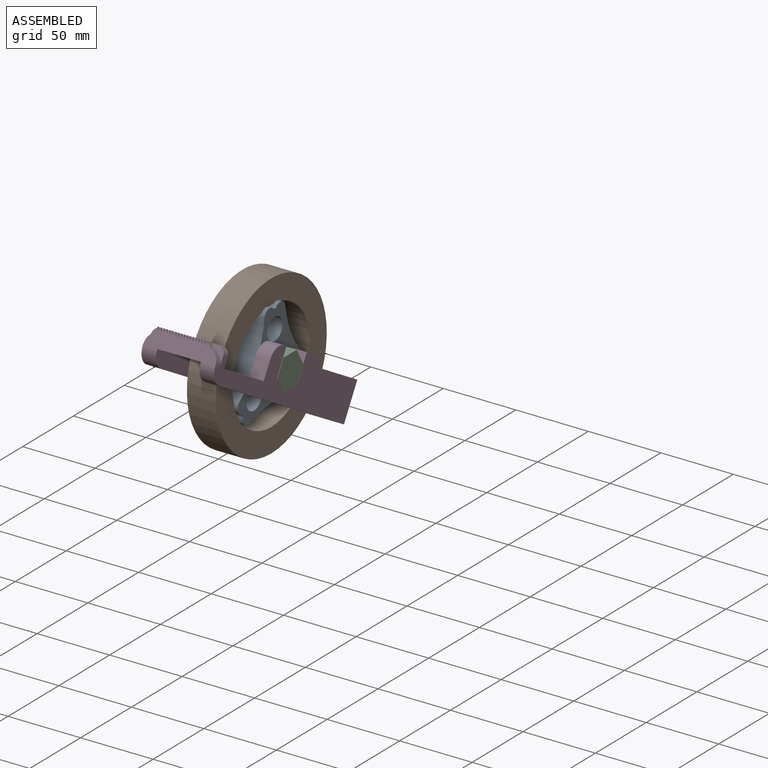
[diagram: assembled view]
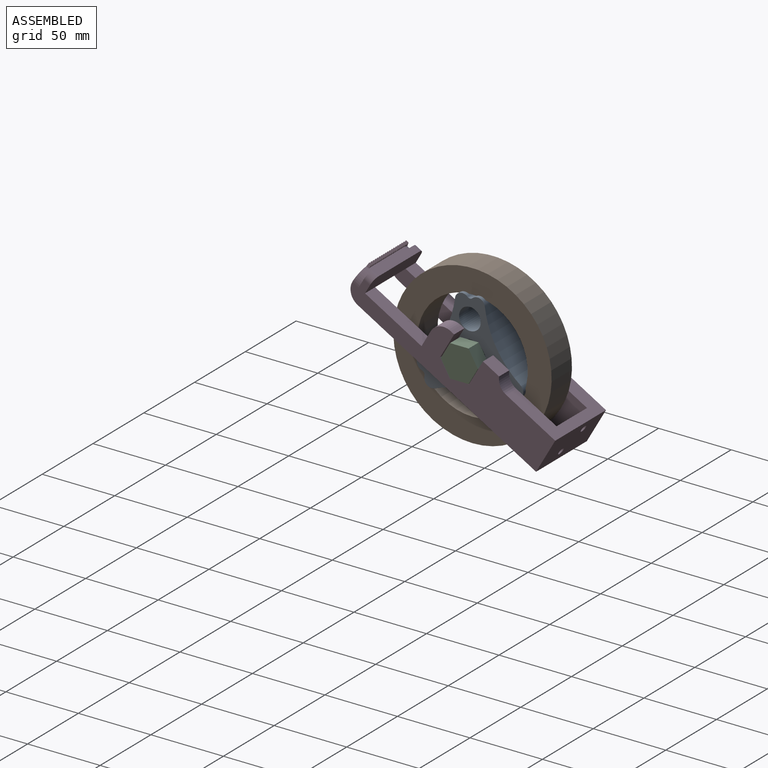
[diagram: assembled view, second angle]
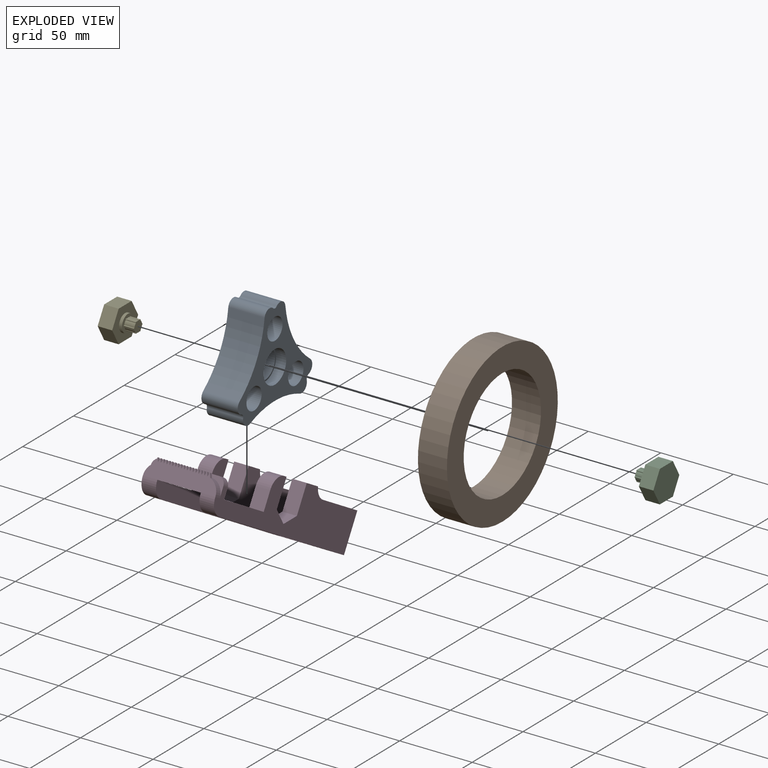
[diagram: exploded view]
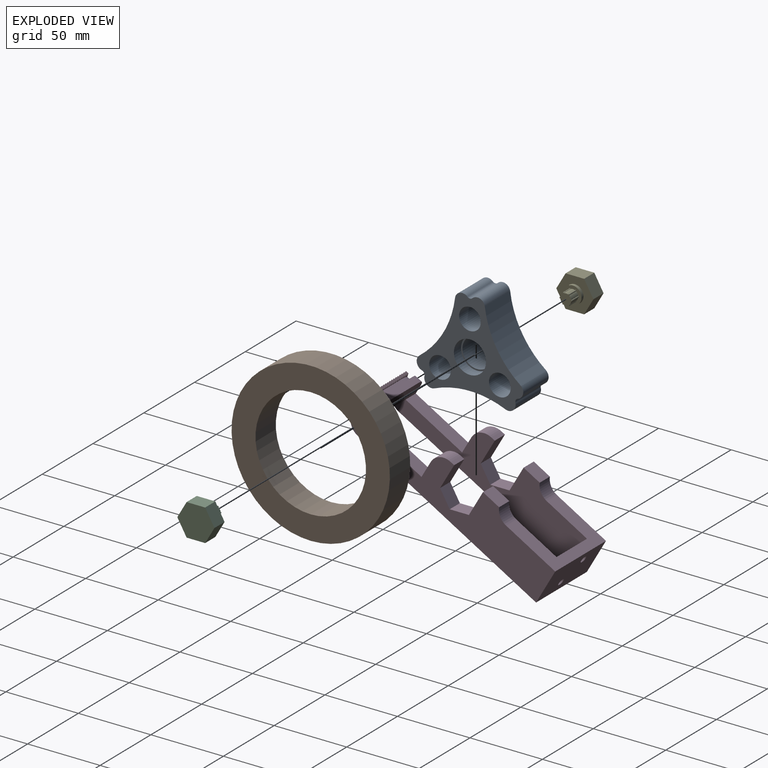
[diagram: exploded view, second angle]
ASSEMBLY  parts=5 mates=4
PART A: 34 faces, bbox 25x73.5x65 mm
  f0: cylinder r=10.08mm len=20.15mm, axis (-1,0,0), area 696.3mm2, adj f31,f33
  f1: cylinder r=2.5mm len=25mm, axis (-1,0,0), area 95.9mm2, adj f16,f17,f18,f29
  f2: cylinder r=39mm len=25mm, axis (-1,0,0), area 3mm2, adj f16,f17,f18,f19
  f3: cylinder r=63.41mm len=42.43mm, axis (-1,0,0), area 1257.7mm2, adj f16,f17,f19,f20
  f4: cylinder r=39mm len=25mm, axis (-1,0,0), area 3mm2, adj f16,f17,f20,f21
  f5: cylinder r=2.5mm len=25mm, axis (-1,0,0), area 95.9mm2, adj f16,f17,f21,f22
  f6: cylinder r=39mm len=25mm, axis (-1,0,0), area 3mm2, adj f16,f17,f22,f23
  f7: cylinder r=63.41mm len=49mm, axis (-1,0,0), area 1257.7mm2, adj f16,f17,f23,f24
  f8: cylinder r=39mm len=25mm, axis (-1,0,0), area 3mm2, adj f16,f17,f24,f25
  f9: cylinder r=2.5mm len=25mm, axis (-1,0,0), area 95.9mm2, adj f16,f17,f25,f26
  f10: cylinder r=39mm len=25mm, axis (-1,0,0), area 3mm2, adj f16,f17,f26,f27
  f11: cylinder r=63.41mm len=42.43mm, axis (-1,0,0), area 1257.7mm2, adj f16,f17,f27,f28
  f12: cylinder r=39mm len=25mm, axis (-1,0,0), area 3mm2, adj f16,f17,f28,f29
  f13: cylinder r=7.5mm len=25mm, axis (-1,0,0), area 1178.1mm2, adj f16,f17
  f14: cylinder r=7.5mm len=25mm, axis (-1,0,0), area 1178.1mm2, adj f16,f17
  f15: cylinder r=7.5mm len=25mm, axis (-1,0,0), area 1178.1mm2, adj f16,f17
  f16: plane 73.47x64.99mm, normal (1,0,0), area 1772.5mm2, adj f1,f2,f3,f4,f5,f6,f7,f8
  f17: plane 73.47x64.99mm, normal (-1,0,0), area 1772.5mm2, adj f1,f2,f3,f4,f5,f6,f7,f8
  f18: cylinder r=5mm len=25mm, axis (1,0,0), area 115.1mm2, adj f1,f2,f16,f17
  f19: cylinder r=5mm len=25mm, axis (1,0,0), area 160.9mm2, adj f2,f3,f16,f17
  f20: cylinder r=5mm len=25mm, axis (1,0,0), area 160.9mm2, adj f3,f4,f16,f17
  f21: cylinder r=5mm len=25mm, axis (1,0,0), area 115.1mm2, adj f4,f5,f16,f17
  f22: cylinder r=5mm len=25mm, axis (1,0,0), area 115.1mm2, adj f5,f6,f16,f17
  f23: cylinder r=5mm len=25mm, axis (1,0,0), area 160.9mm2, adj f6,f7,f16,f17
  f24: cylinder r=5mm len=25mm, axis (1,0,0), area 160.9mm2, adj f7,f8,f16,f17
  f25: cylinder r=5mm len=25mm, axis (1,0,0), area 115.1mm2, adj f8,f9,f16,f17
  f26: cylinder r=5mm len=25mm, axis (1,0,0), area 115.1mm2, adj f9,f10,f16,f17
  f27: cylinder r=5mm len=25mm, axis (1,0,0), area 160.9mm2, adj f10,f11,f16,f17
  f28: cylinder r=5mm len=25mm, axis (1,0,0), area 160.9mm2, adj f11,f12,f16,f17
  f29: cylinder r=5mm len=25mm, axis (1,0,0), area 115.1mm2, adj f1,f12,f16,f17
  f30: cylinder r=11.07mm len=22.15mm, axis (-1,0,0), area 487.1mm2, adj f17,f31
  f31: plane 22.15x22.15mm, normal (-1,0,0), area 66.4mm2, adj f0,f30
  f32: cylinder r=11.07mm len=22.15mm, axis (1,0,0), area 487.1mm2, adj f16,f33
  f33: plane 22.15x22.15mm, normal (1,0,0), area 66.4mm2, adj f0,f32
PART B: 4 faces, bbox 20x109.2x109.2 mm
  f0: cylinder r=38.1mm len=76.2mm, axis (-1,0,0), area 4787.8mm2, adj f2,f3
  f1: cylinder r=54.59mm len=109.17mm, axis (-1,0,0), area 6859.6mm2, adj f2,f3
  f2: plane 109.17x109.17mm, normal (1,0,0), area 4800.7mm2, adj f0,f1
  f3: plane 109.17x109.17mm, normal (-1,0,0), area 4800.7mm2, adj f0,f1
PART C: 23 faces, bbox 19x22.2x25.6 mm
  f0: plane 11.08x10mm, normal (0,0.5,-0.87), area 127.9mm2, adj f1,f5,f6,f7
  f1: plane 12.79x10mm, normal (0,1,0), area 127.9mm2, adj f0,f2,f6,f7
  f2: plane 11.08x10mm, normal (0,0.5,0.87), area 127.9mm2, adj f1,f3,f6,f7
  f3: plane 11.08x10mm, normal (0,-0.5,0.87), area 127.9mm2, adj f2,f4,f6,f7
  f4: plane 12.79x10mm, normal (0,-1,0), area 127.9mm2, adj f3,f5,f6,f7
  f5: plane 11.08x10mm, normal (0,-0.5,-0.87), area 127.9mm2, adj f0,f4,f6,f7
  f6: plane 25.58x22.15mm, normal (1,0,0), area 424.9mm2, adj f0,f1,f2,f3,f4,f5
  f7: plane 25.58x22.15mm, normal (-1,0,0), area 311.8mm2, adj f0,f1,f2,f3,f4,f5,f8
  f8: cylinder r=6mm len=12mm, axis (1,0,0), area 75.4mm2, adj f7,f9
  f9: plane 12x12mm, normal (-1,0,0), area 66.5mm2, adj f8,f11,f12,f13,f14,f15,f16,f17
  f10: plane 8.5x7.5mm, normal (-1,0,0), area 46.6mm2, adj f11,f12,f13,f14,f15,f16,f17,f18
  f11: cylinder r=0.5mm len=7mm, axis (1,0,0), area 11.5mm2, adj f9,f10,f12,f22
  f12: cylinder r=3.75mm len=7mm, axis (1,0,0), area 20.5mm2, adj f9,f10,f11,f13
  f13: cylinder r=0.5mm len=7mm, axis (1,0,0), area 11.5mm2, adj f9,f10,f12,f14
  f14: cylinder r=3.75mm len=7mm, axis (1,0,0), area 20.5mm2, adj f9,f10,f13,f15
  f15: cylinder r=0.5mm len=7mm, axis (1,0,0), area 11.5mm2, adj f9,f10,f14,f16
  f16: cylinder r=3.75mm len=7mm, axis (1,0,0), area 20.5mm2, adj f9,f10,f15,f17
  f17: cylinder r=0.5mm len=7mm, axis (1,0,0), area 11.5mm2, adj f9,f10,f16,f18
  f18: cylinder r=3.75mm len=7mm, axis (1,0,0), area 20.5mm2, adj f9,f10,f17,f19
  f19: cylinder r=0.5mm len=7mm, axis (1,0,0), area 11.5mm2, adj f9,f10,f18,f20
  f20: cylinder r=3.75mm len=7mm, axis (1,0,0), area 20.5mm2, adj f9,f10,f19,f21
  f21: cylinder r=0.5mm len=7mm, axis (1,0,0), area 11.5mm2, adj f9,f10,f20,f22
  f22: cylinder r=3.75mm len=7mm, axis (1,0,0), area 20.5mm2, adj f9,f10,f11,f21
PART D: 100 faces, bbox 50x152x32.8 mm
  f0: plane 144.96x32.79mm, normal (1,0,0), area 2687.1mm2, adj f2,f4,f5,f6,f7,f8,f9,f10
  f1: plane 50x12.27mm, normal (0,-1,0), area 499.2mm2, adj f14,f16,f28,f29,f30,f31,f33,f34
  f2: plane 142x50mm, normal (0,0,-1), area 3051.3mm2, adj f0,f3,f15,f17,f18,f27,f89,f92
  f3: plane 50x26.39mm, normal (0,1,0), area 1286.9mm2, adj f2,f4,f15,f27,f96,f98
  f4: plane 50x39.04mm, normal (0,0,1), area 992.1mm2, adj f0,f3,f15,f17,f18,f27,f86,f90
  f5: plane 12.84x10mm, normal (0,0,1), area 128.4mm2, adj f0,f6,f15,f90
  f6: plane 19.41x10mm, normal (0,-1,0), area 194.1mm2, adj f0,f5,f7,f15
  f7: plane 11.48x10mm, normal (0,-0.5,0.87), area 132.5mm2, adj f0,f6,f8,f15
  f8: plane 11.48x10mm, normal (0,0.5,0.87), area 132.5mm2, adj f0,f7,f9,f15
  f9: plane 19.41x10mm, normal (0,1,0), area 194.1mm2, adj f0,f8,f10,f15
  f10: plane 10x2.84mm, normal (0,0,1), area 28.4mm2, adj f0,f9,f15,f91
  f11: plane 12.79x10mm, normal (0,-1,0), area 127.9mm2, adj f0,f12,f15,f91
  f12: plane 45x10mm, normal (0,0,1), area 450mm2, adj f0,f11,f13,f15
  f13: plane 50x12mm, normal (0,1,0), area 589.3mm2, adj f12,f15,f16,f26,f27,f85,f94,f95
  f14: plane 30x5mm, normal (0,0,1), area 95.5mm2, adj f1,f30,f32,f33,f34,f35,f36,f37
  f15: plane 152x32.79mm, normal (-1,0,0), area 2908.1mm2, adj f2,f3,f4,f5,f6,f7,f8,f9
  f16: plane 30x10mm, normal (0,0,-1), area 300mm2, adj f0,f1,f13,f18
  f17: plane 30x26.39mm, normal (0,-1,0), area 661.2mm2, adj f0,f2,f4,f18,f97,f99
  f18: plane 144.96x32.79mm, normal (-1,0,0), area 2687.1mm2, adj f2,f4,f16,f17,f19,f20,f21,f22
  f19: plane 12.84x10mm, normal (0,0,1), area 128.4mm2, adj f18,f20,f27,f86
  f20: plane 19.41x10mm, normal (0,-1,0), area 194.1mm2, adj f18,f19,f21,f27
  f21: plane 11.48x10mm, normal (0,-0.5,0.87), area 132.5mm2, adj f18,f20,f22,f27
  f22: plane 11.48x10mm, normal (0,0.5,0.87), area 132.5mm2, adj f18,f21,f23,f27
  f23: plane 19.41x10mm, normal (0,1,0), area 194.1mm2, adj f18,f22,f24,f27
  f24: plane 10x2.84mm, normal (0,0,1), area 28.4mm2, adj f18,f23,f27,f87
  f25: plane 12.79x10mm, normal (0,-1,0), area 127.9mm2, adj f18,f26,f27,f87
  f26: plane 45x10mm, normal (0,0,1), area 450mm2, adj f13,f18,f25,f27
  f27: plane 152x32.79mm, normal (1,0,0), area 2908.1mm2, adj f2,f3,f4,f13,f19,f20,f21,f22
  f28: plane 2.46x2mm, normal (0.93,0,0.37), area 5.3mm2, adj f1,f29,f58,f59
  f29: plane 3.98x2mm, normal (-0.93,0,0.37), area 8.6mm2, adj f1,f28,f59,f93
  f30: plane 2.27x2mm, normal (0.93,0,0.37), area 4.9mm2, adj f1,f14,f31,f32
  f31: plane 2.31x2mm, normal (-0.93,0,0.37), area 5mm2, adj f1,f30,f32,f93
  f32: plane 2.31x1.83mm, normal (0,1,0), area 2.1mm2, adj f14,f30,f31,f93
  f33: plane 2.27x2mm, normal (0.93,0,0.37), area 4.9mm2, adj f1,f14,f34,f35
  f34: plane 2.27x2mm, normal (-0.93,0,0.37), area 4.9mm2, adj f1,f14,f33,f35
  f35: plane 2.27x1.82mm, normal (0,1,0), area 2.1mm2, adj f14,f33,f34
  f36: plane 2.27x2mm, normal (0.93,0,0.37), area 4.9mm2, adj f1,f14,f37,f38
  f37: plane 2.27x2mm, normal (-0.93,0,0.37), area 4.9mm2, adj f1,f14,f36,f38
  f38: plane 2.27x1.82mm, normal (0,1,0), area 2.1mm2, adj f14,f36,f37
  f39: plane 2.27x2mm, normal (0.93,0,0.37), area 4.9mm2, adj f1,f14,f40,f41
  f40: plane 2.27x2mm, normal (-0.93,0,0.37), area 4.9mm2, adj f1,f14,f39,f41
  f41: plane 2.27x1.82mm, normal (0,1,0), area 2.1mm2, adj f14,f39,f40
  f42: plane 2.27x2mm, normal (0.93,0,0.37), area 4.9mm2, adj f1,f14,f43,f44
  f43: plane 2.27x2mm, normal (-0.93,0,0.37), area 4.9mm2, adj f1,f14,f42,f44
  f44: plane 2.27x1.82mm, normal (0,1,0), area 2.1mm2, adj f14,f42,f43
  f45: plane 2.27x2mm, normal (0.93,0,0.37), area 4.9mm2, adj f1,f14,f46,f47
  f46: plane 2.27x2mm, normal (-0.93,0,0.37), area 4.9mm2, adj f1,f14,f45,f47
  f47: plane 2.27x1.82mm, normal (0,1,0), area 2.1mm2, adj f14,f45,f46
  f48: plane 2.27x2mm, normal (0.93,0,0.37), area 4.9mm2, adj f1,f14,f49,f50
  f49: plane 2.27x2mm, normal (-0.93,0,0.37), area 4.9mm2, adj f1,f14,f48,f50
  f50: plane 2.27x1.82mm, normal (0,1,0), area 2.1mm2, adj f14,f48,f49
  f51: plane 2.27x2mm, normal (0.93,0,0.37), area 4.9mm2, adj f1,f14,f52,f53
  f52: plane 2.27x2mm, normal (-0.93,0,0.37), area 4.9mm2, adj f1,f14,f51,f53
  f53: plane 2.27x1.82mm, normal (0,1,0), area 2.1mm2, adj f14,f51,f52
  f54: plane 2.77x2mm, normal (0.93,0,0.37), area 6mm2, adj f1,f55,f56,f88
  f55: plane 2.33x2mm, normal (-0.93,0,0.37), area 5mm2, adj f1,f54,f56,f88
  f56: plane 2.77x2.04mm, normal (0,1,0), area 2.5mm2, adj f54,f55,f88
  f57: plane 2.33x2mm, normal (0.93,0,0.38), area 5mm2, adj f1,f58,f59,f93
  f58: plane 2.46x2mm, normal (-0.93,0,0.37), area 5.3mm2, adj f1,f28,f57,f59
  f59: plane 4.51x3.98mm, normal (0,1,0), area 6.6mm2, adj f28,f29,f57,f58,f93
  f60: plane 2.27x2mm, normal (0.92,0,0.39), area 4.9mm2, adj f1,f14,f61,f62
  f61: plane 2.27x2mm, normal (-0.94,0,0.35), area 4.8mm2, adj f1,f14,f60,f62
  f62: plane 2.27x1.81mm, normal (0,1,0), area 2.1mm2, adj f14,f60,f61
  f63: plane 2.27x2mm, normal (0.92,0,0.39), area 4.9mm2, adj f1,f14,f64,f65
  f64: plane 2.27x2mm, normal (-0.94,0,0.34), area 4.8mm2, adj f1,f14,f63,f65
  f65: plane 2.27x1.79mm, normal (0,1,0), area 2mm2, adj f14,f63,f64
  f66: plane 2.27x2mm, normal (0.93,0,0.37), area 4.9mm2, adj f1,f14,f67,f68
  f67: plane 2.27x2mm, normal (-0.93,0,0.37), area 4.9mm2, adj f1,f14,f66,f68
  f68: plane 2.27x1.83mm, normal (0,1,0), area 2.1mm2, adj f14,f66,f67
  f69: plane 2.27x2mm, normal (0.93,0,0.37), area 4.9mm2, adj f1,f14,f70,f71
  f70: plane 2.27x2mm, normal (-0.93,0,0.37), area 4.9mm2, adj f1,f14,f69,f71
  f71: plane 2.27x1.83mm, normal (0,1,0), area 2.1mm2, adj f14,f69,f70
  f72: plane 2.27x2mm, normal (0.93,0,0.37), area 4.9mm2, adj f1,f14,f73,f74
  f73: plane 2.27x2mm, normal (-0.93,0,0.37), area 4.9mm2, adj f1,f14,f72,f74
  f74: plane 2.27x1.83mm, normal (0,1,0), area 2.1mm2, adj f14,f72,f73
  f75: plane 2.27x2mm, normal (0.93,0,0.37), area 4.9mm2, adj f1,f14,f76,f77
  f76: plane 2.27x2mm, normal (-0.93,0,0.37), area 4.9mm2, adj f1,f14,f75,f77
  f77: plane 2.27x1.8mm, normal (0,1,0), area 2mm2, adj f14,f75,f76
  f78: plane 2.27x2mm, normal (0.93,0,0.37), area 4.9mm2, adj f1,f14,f79,f80
  f79: plane 2.27x2mm, normal (-0.93,0,0.37), area 4.9mm2, adj f1,f14,f78,f80
  f80: plane 2.27x1.83mm, normal (0,1,0), area 2.1mm2, adj f14,f78,f79
  f81: plane 2.32x2mm, normal (0.93,0,0.37), area 5mm2, adj f1,f82,f83,f88
  f82: plane 2.27x2mm, normal (-0.93,0,0.37), area 4.9mm2, adj f1,f14,f81,f83
  f83: plane 2.32x1.84mm, normal (0,1,0), area 2.1mm2, adj f14,f81,f82,f88
  f84: plane 50x12mm, normal (0,-1,0), area 132.2mm2, adj f14,f15,f27,f85,f88,f93,f94,f95
  f85: plane 40x5mm, normal (0,0,1), area 200mm2, adj f13,f84,f94,f95
  f86: cylinder r=10mm len=10mm, axis (-1,0,0), area 120.2mm2, adj f4,f18,f19,f27
  f87: cylinder r=10mm len=10mm, axis (-1,0,0), area 157.1mm2, adj f18,f24,f25,f27
  f88: cylinder r=10mm len=10mm, axis (0,-1,0), area 72.5mm2, adj f1,f14,f27,f54,f55,f56,f81,f83
  f89: cylinder r=10mm len=10mm, axis (-1,0,0), area 157.1mm2, adj f1,f2,f18,f27
  f90: cylinder r=10mm len=10mm, axis (-1,0,0), area 120.2mm2, adj f0,f4,f5,f15
  f91: cylinder r=10mm len=10mm, axis (1,0,0), area 157.1mm2, adj f0,f10,f11,f15
  f92: cylinder r=10mm len=10mm, axis (1,0,0), area 157.1mm2, adj f0,f1,f2,f15
  f93: cylinder r=10mm len=10mm, axis (0,-1,0), area 67mm2, adj f1,f14,f15,f29,f31,f32,f57,f59
  f94: cylinder r=5mm len=5mm, axis (0,-1,0), area 39.3mm2, adj f13,f27,f84,f85
  f95: cylinder r=5mm len=5mm, axis (0,-1,0), area 39.3mm2, adj f13,f15,f84,f85
  f96: cylinder r=2.29mm len=4.57mm, axis (0,-1,0), area 63.6mm2, adj f3,f97
  f97: cone r=2.29mm half-angle=41deg, axis (0,-1,0), area 74.5mm2, adj f17,f96
  f98: cylinder r=2.29mm len=4.57mm, axis (0,-1,0), area 63.6mm2, adj f3,f99
  f99: cone r=2.29mm half-angle=41deg, axis (0,-1,0), area 74.5mm2, adj f17,f98
PART E: same geometry as C
PLACE A t=(-100.15,-22.62,163.77)mm
PLACE B t=(-97.65,-22.62,163.77)mm
PLACE C rot(axis=(-1,0,0),30deg) t=(-124.65,-22.62,163.77)mm
PLACE D rot(axis=(-1,0,0),30deg) t=(-199.65,-22.62,164.17)mm
PLACE E rot(axis=(0,-0.71,0.71),180deg) t=(-50.65,-22.62,163.77)mm
MATE revolute B.f0 <-> A.f0  axis (1,0,0) through (-77.65,-22.62,163.77)mm
MATE revolute C.f8 <-> A.f0  axis (-1,0,0) through (-76.65,-22.62,163.77)mm
MATE fastened D.f21 <-> C.f0  axis (0,0,1) through (-69.65,-22.62,152.69)mm
MATE revolute E.f8 <-> A.f0  axis (1,0,0) through (-98.65,-22.62,163.77)mm
